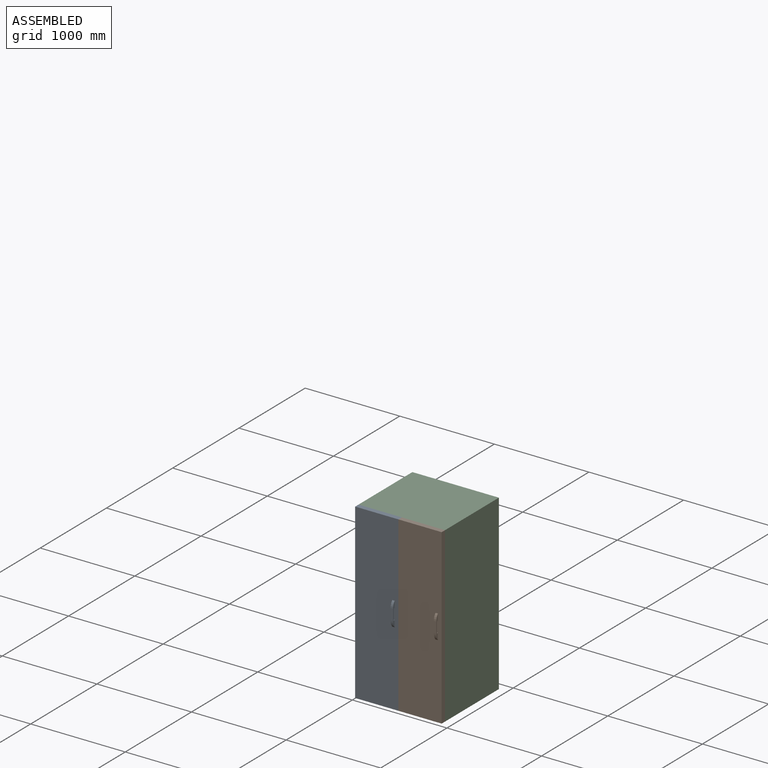
[diagram: assembled view]
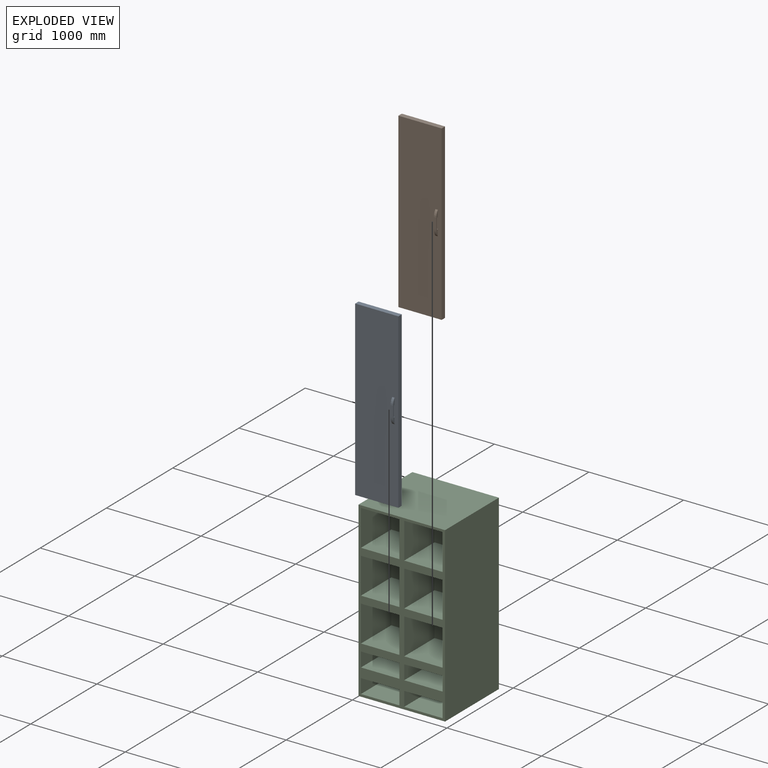
[diagram: exploded view]
GUIDED TOUR — MATED ASSEMBLY (Onshape document 135cf631714aeb2c45aebf53, AutoMate assembly 135cf631714aeb2c45aebf53_234c106c5b8bd25d1501e75b_38424afdbf06f811aea4d824_default)

This assembly has 3 components, labeled P0..P2 below (a component is one placed occurrence of a part; the same part can appear more than once), held together by 2 mates. A mate is a constraint between two components; its type names the relative motion it leaves free:
  REVOLUTE — leaves rotation about the listed axis free (a hinge).
Axis/direction vectors are unit vectors and 'through' points are millimeter coordinates, both in the assembly's world frame.

MATES
  1. REVOLUTE "Revolute 2": P1 <-> P2, axis (0.000, 0.000, -1.000) through (952.82, 38.84, 895.73) mm
  2. REVOLUTE "Revolute 1": P0 <-> P2, axis (0.000, 0.000, -1.000) through (38.42, 38.84, 895.73) mm

ASSEMBLY ORDER
  1. P1 — the base component [order verified]
  2. P0 [order verified]
  3. P2 [order verified]
Order-tag legend:
  [order verified] — this step's position reverses a verified removal order: the component was checked to insert without passing through the ones already placed.

Of the 3 components, 2 carry the full construction recipe — the FeatureScript program that regenerates the part's solid from scratch; the rest are supplied as boundary geometry only.
Each toured component is shown spotlighted twice — in the assembled view, then in the exploded view, where a leader line traces a displaced component back to its assembled socket (saturated green if recipe-attached, orange if geometry-only; every other component desaturated gray) — followed by its recipe or geometry summary and the mates that hold it.
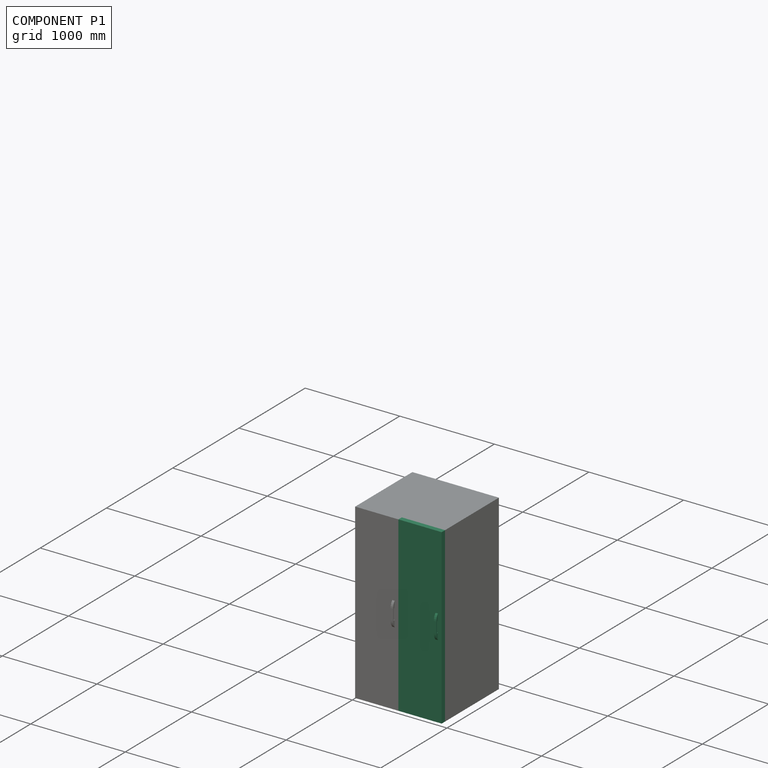
[diagram: component P1 — assembled]
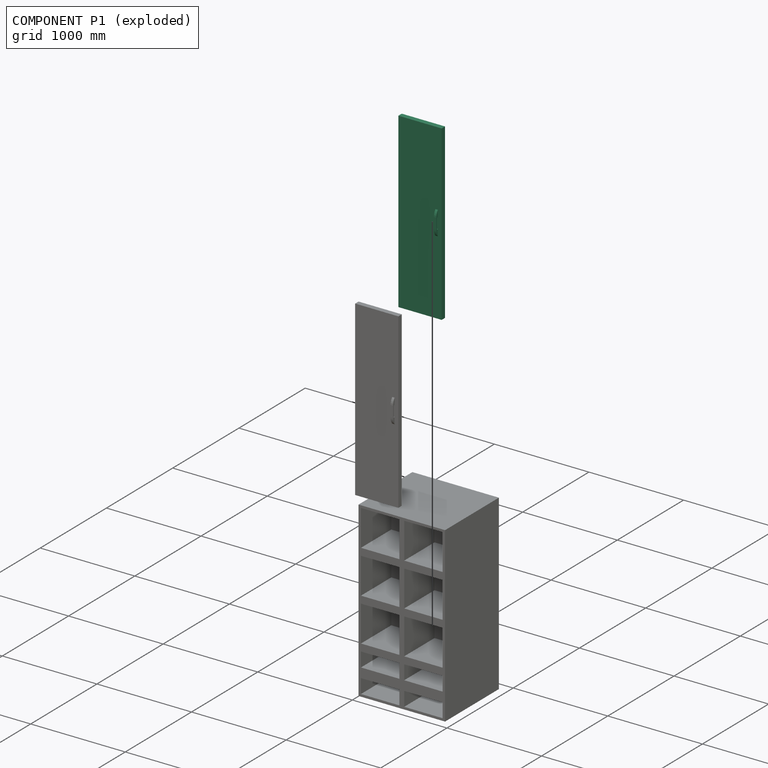
[diagram: component P1 — exploded]
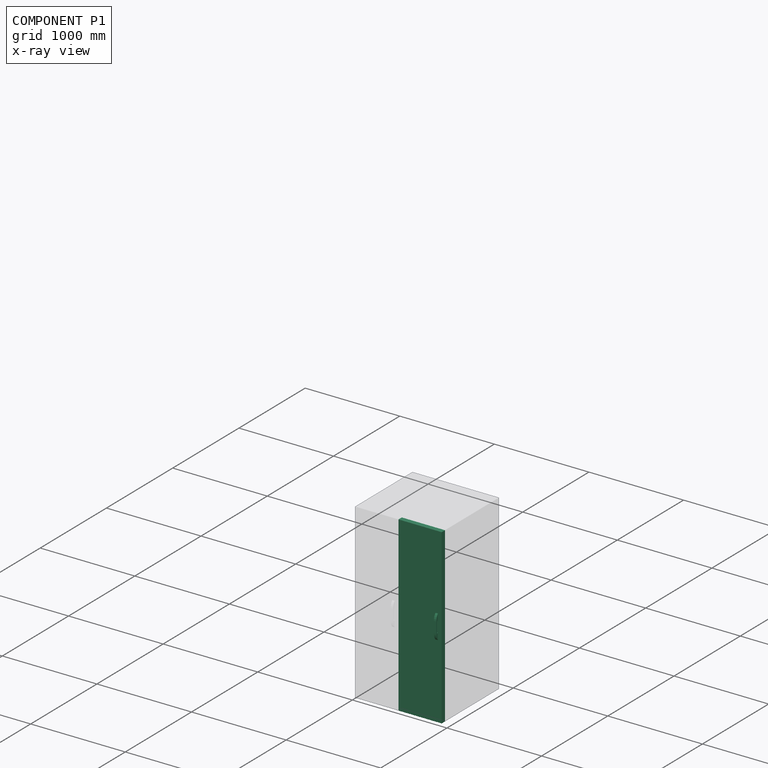
[diagram: component P1 — x-ray view]
COMPONENT P1 — same part as P0 (CADFS 00264354); its construction recipe is shown at P0.
Held by: REVOLUTE mate "Revolute 2" to P2.
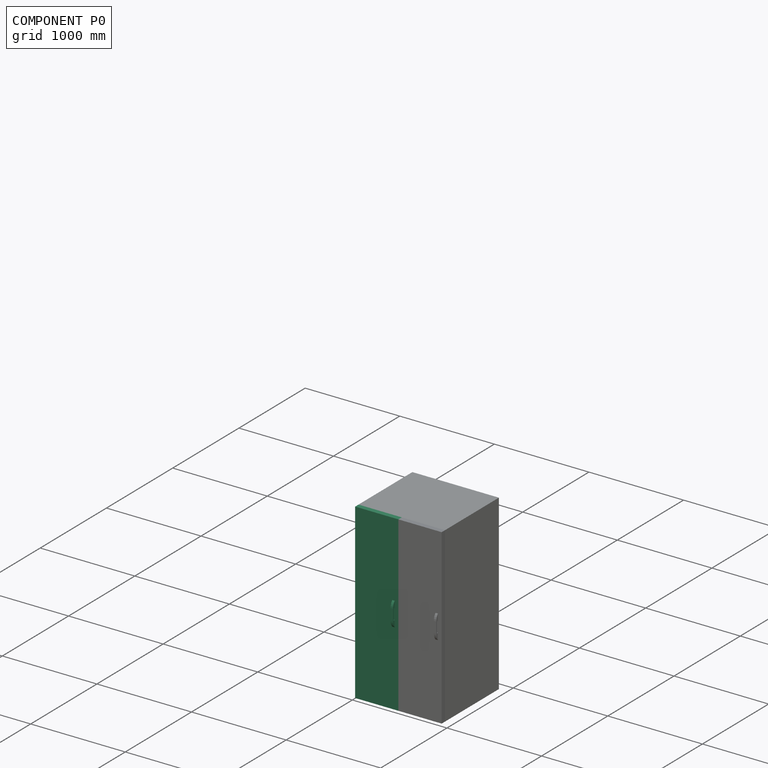
[diagram: component P0 — assembled]
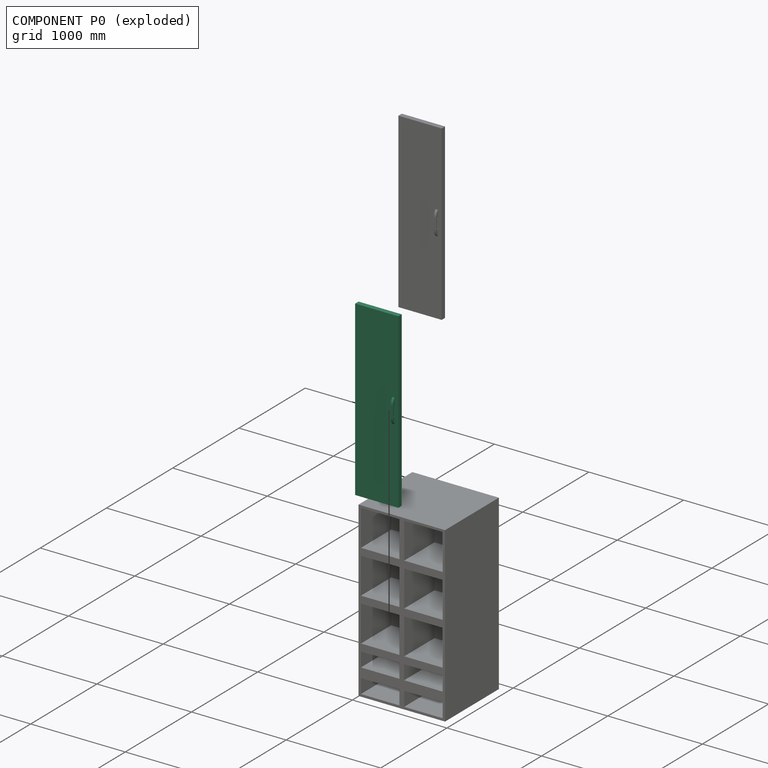
[diagram: component P0 — exploded]
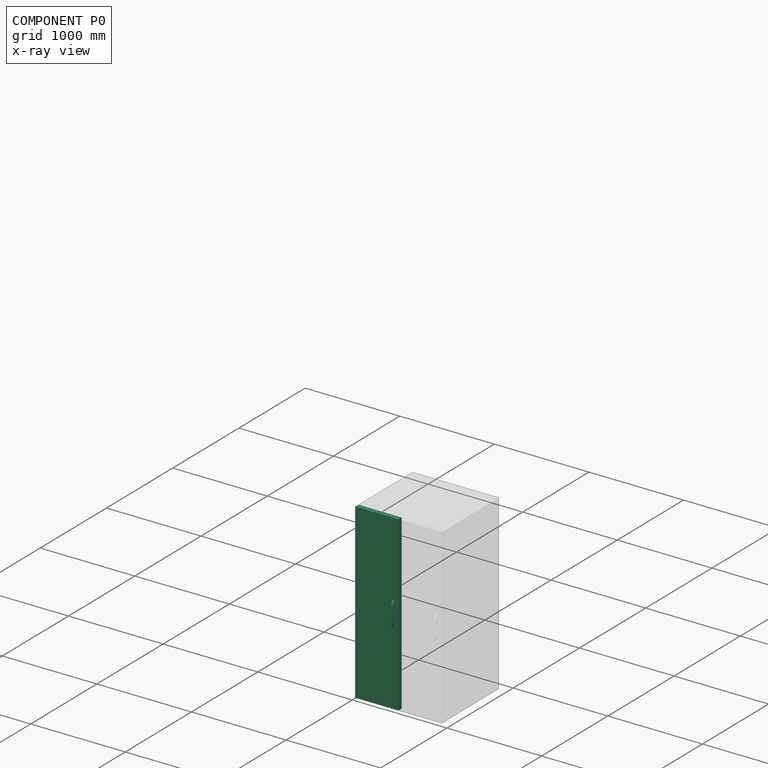
[diagram: component P0 — x-ray view]
COMPONENT P0 — recipe-attached (CADFS 00264354, mesh-verified: the recipe's output STEP matches this component's geometry to below the mesh-comparison resolution (tessellation chordal tolerance ~2.83 mm)).
Held by: REVOLUTE mate "Revolute 1" to P2.
Construction recipe (FeatureScript — the CAD program that rebuilds this solid; sketch coordinates are in the units given by the * unit suffixes, e.g. mm):

FeatureScript 1511;
import(path : "onshape/std/geometry.fs", version : "1511.0");
import(path : "onshape/std/common.fs", version : "1511.0");
const mm = millimeter;
const VERTEX = EntityType.VERTEX;
const EDGE = EntityType.EDGE;
const FACE = EntityType.FACE;
const BODY = EntityType.BODY;
function v(x, y){return vector(x, y);}
function OD(order){return orderDisambiguation(order);}
function OSD(set){return originalSetDisambiguation(set);}
function TD(topology){return topologyDisambiguation(topology);}
function TDD(query){return trueDependencyDisambiguation(query);}
function sQuery(a, b, c) {return sketchEntityQuery(a, b, c);}

annotation { "Feature Type Name" : "Feature", "Feature Type Description" : "" }
export const myFeature = defineFeature(function(context is Context, id is Id, definition is map)
    precondition{}
    {
        {
            var Q0;
            Q0=qCreatedBy(makeId("Front.planeOp"),FACE);
            var sketch = newSketch(context, id + "F0", { "sketchPlane" : qUnion([Q0])});
            skLineSegment(sketch, "E0.bottom", {"start": v(-228.6, 914.4) * mm, "end": v(228.6, 914.4) * mm});
            skLineSegment(sketch, "E0.top", {"start": v(-228.6, -914.4) * mm, "end": v(228.6, -914.4) * mm});
            skLineSegment(sketch, "E0.left", {"start": v(-228.6, 914.4) * mm, "end": v(-228.6, -914.4) * mm});
            skLineSegment(sketch, "E0.right", {"start": v(228.6, 914.4) * mm, "end": v(228.6, -914.4) * mm});
            skPoint(sketch, "E0.middle", {"position": v(0, 0) * mm});
            skSolve(sketch);
        }
        {
            var Q0;
            Q0=makeQuery(id+"F0.imprint","IMPRINT",FACE,{"disambiguationData":[TD([[makeQuery(id+"F0.imprint","IMPRINT",EDGE,{"derivedFrom":sQuery(id+"F0.wireOp",EDGE,"E0.bottom")}),-1.0]])]});
            extrude(context, id + "F1", {"entities" : qUnion([Q0]), "depth" : 50.8 * mm});
        }
        {
            var Q0;
            Q0=makeQuery(id+"F1.opExtrude","CAP_FACE",FACE,{"disambiguationData":[OSD([sQuery(id+"F0.wireOp",EDGE,"E0.bottom"),sQuery(id+"F0.wireOp",EDGE,"E0.top"),sQuery(id+"F0.wireOp",EDGE,"E0.left"),sQuery(id+"F0.wireOp",EDGE,"E0.right")])],"isStart":false});
            var sketch = newSketch(context, id + "F2", { "sketchPlane" : qUnion([Q0])});
            skLineSegment(sketch, "E1.bottom", {"start": v(188.67, 127) * mm, "end": v(163.27, 127) * mm});
            skLineSegment(sketch, "E1.top", {"start": v(188.67, -127) * mm, "end": v(163.27, -127) * mm});
            skLineSegment(sketch, "E1.left", {"start": v(188.67, 127) * mm, "end": v(188.67, -127) * mm});
            skLineSegment(sketch, "E1.right", {"start": v(163.27, 127) * mm, "end": v(163.27, -127) * mm});
            skPoint(sketch, "E1.middle", {"position": v(175.97, 0) * mm});
            skSolve(sketch);
        }
        {
            var Q0;
            Q0=makeQuery(id+"F2.imprint","IMPRINT",FACE,{"disambiguationData":[TD([[makeQuery(id+"F2.imprint","IMPRINT",EDGE,{"derivedFrom":sQuery(id+"F2.wireOp",EDGE,"E1.bottom")}),1.0]])]});
            extrude(context, id + "F3", {"entities" : qUnion([Q0]), "operationType" : NewBodyOperationType.ADD, "depth" : 25.4 * mm});
        }
        {
            var Q0;
            Q0=makeQuery(id+"F3.opExtrude","CAP_EDGE",EDGE,{"disambiguationData":[OSD([sQuery(id+"F2.wireOp",EDGE,"E1.bottom")])],"isStart":false});
            var Q1;
            Q1=makeQuery(id+"F3.opExtrude","CAP_EDGE",EDGE,{"disambiguationData":[OSD([sQuery(id+"F2.wireOp",EDGE,"E1.top")])],"isStart":false});
            fillet(context, id + "F4", {"entities" : qUnion([Q0, Q1]), "radius" : 101.6 * mm, "tangentPropagation" : true, "allowEdgeOverflow" : false});
        }
        {
            var Q0;
            Q0=makeQuery(id+"F3.opExtrude","SWEPT_FACE",FACE,{"disambiguationData":[OSD([sQuery(id+"F2.wireOp",EDGE,"E1.left")])]});
            var sketch = newSketch(context, id + "F5", { "sketchPlane" : qUnion([Q0])});
            skLineSegment(sketch, "E2.bottom", {"start": v(-50.8, 0) * mm, "end": v(-63.5, 0) * mm});
            skLineSegment(sketch, "E2.top", {"start": v(-50.8, 57.15) * mm, "end": v(-63.5, 57.15) * mm});
            skLineSegment(sketch, "E2.left", {"start": v(-50.8, 0) * mm, "end": v(-50.8, 57.15) * mm});
            skLineSegment(sketch, "E2.right", {"start": v(-63.5, 0) * mm, "end": v(-63.5, 57.15) * mm});
            skLineSegment(sketch, "E3.MirrorCS", {"start": v(-63.5, 0) * mm, "end": v(-63.5, -57.15) * mm});
            skLineSegment(sketch, "E4.bottom", {"start": v(-63.5, -57.15) * mm, "end": v(-50.8, -57.15) * mm});
            skLineSegment(sketch, "E4.top", {"start": v(-63.5, 0) * mm, "end": v(-50.8, 0) * mm});
            skLineSegment(sketch, "E4.left", {"start": v(-63.5, -57.15) * mm, "end": v(-63.5, 0) * mm});
            skLineSegment(sketch, "E4.right", {"start": v(-50.8, -57.15) * mm, "end": v(-50.8, 0) * mm});
            skSolve(sketch);
        }
        {
            var Q0;
            Q0=makeQuery(id+"F5.imprint","IMPRINT",FACE,{"disambiguationData":[TD([[makeQuery(id+"F5.imprint","IMPRINT",EDGE,{"derivedFrom":sQuery(id+"F5.wireOp",EDGE,"E4.bottom")}),1.0]])]});
            var Q1;
            Q1=makeQuery(id+"F5.imprint","IMPRINT",FACE,{"disambiguationData":[TD([[makeQuery(id+"F5.imprint","IMPRINT",EDGE,{"derivedFrom":sQuery(id+"F5.wireOp",EDGE,"E2.top")}),1.0]])]});
            extrude(context, id + "F6", {"entities" : qUnion([Q0, Q1]), "operationType" : NewBodyOperationType.REMOVE, "endBound" : BoundingType.THROUGH_ALL, "oppositeDirection" : true, "depth" : 25.4 * mm});
        }
    });
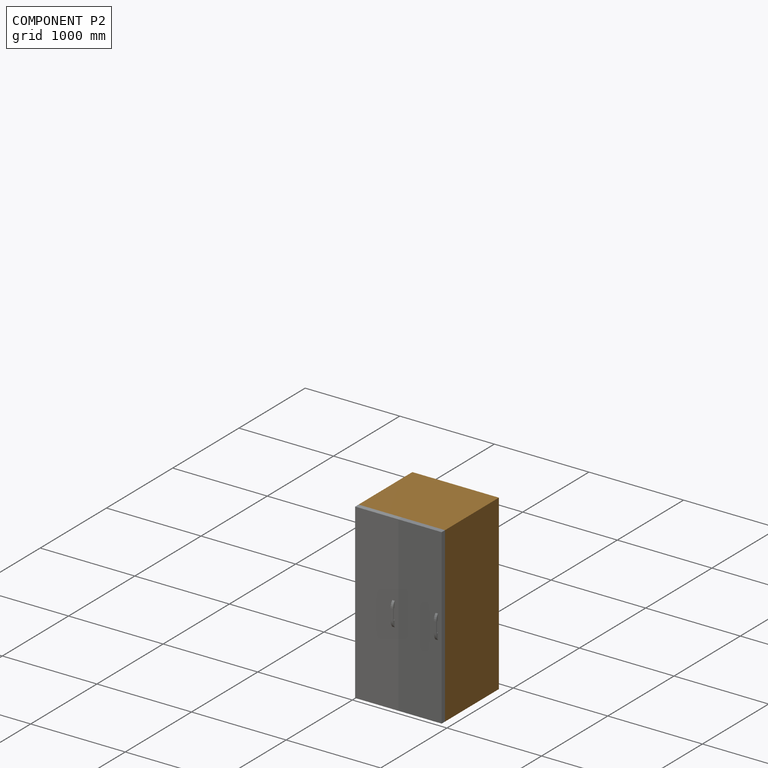
[diagram: component P2 — assembled]
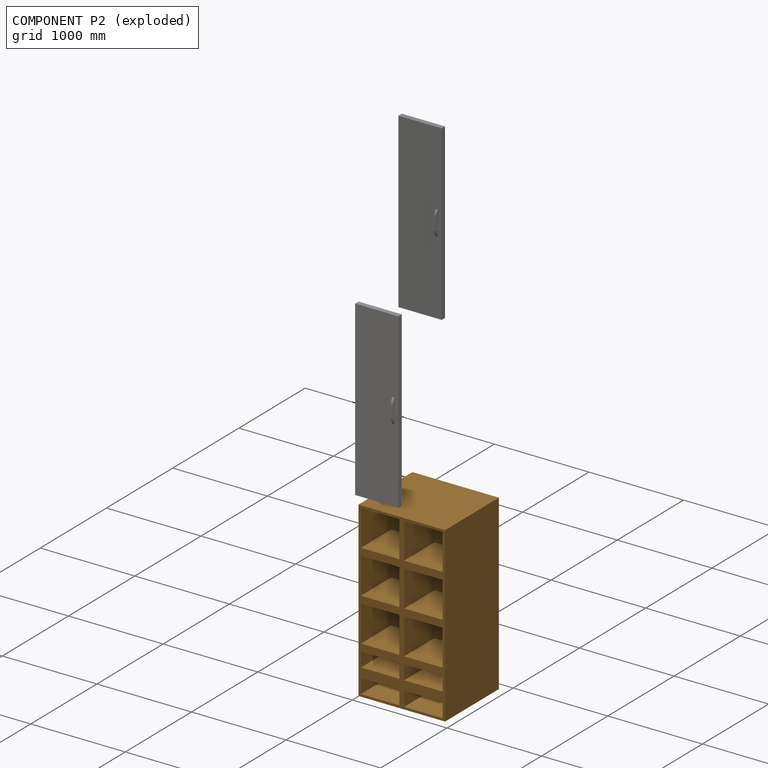
[diagram: component P2 — exploded]
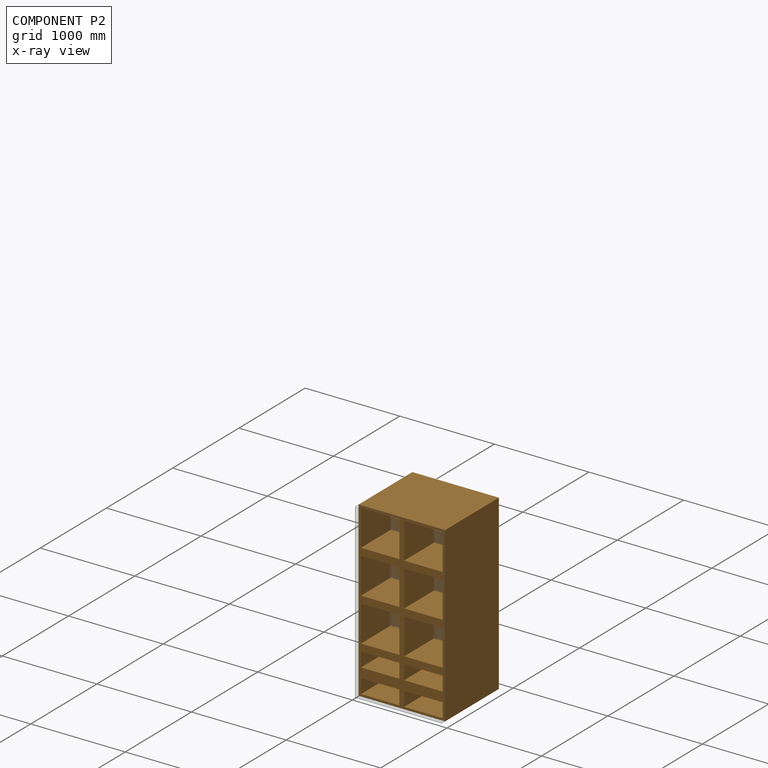
[diagram: component P2 — x-ray view]
COMPONENT P2 — geometry summary (no construction recipe available for this part):
  bounding box: 1828.8 x 914.4 x 812.8 mm
  B-rep topology: 1 solid, 56 faces, 264 edges
  volume: 821188551 mm^3 (60% of its bounding box)
  symmetry: mirror-symmetric across its x mid-plane
Held by: REVOLUTE mate "Revolute 2" to P1; REVOLUTE mate "Revolute 1" to P0.
PROVENANCE & LICENSES
Assembly (occurrences, transforms, mates, per-part STEP geometry): AutoMate dataset, Zenodo record 7776208, CC0.
Construction recipes: CADFS (HuggingFace VladPyatov/CADFS, CC-BY-4.0, layered over the ABC dataset), FeatureScript reconstruction programs keyed by ABC model id.
Join: ABC meta listings map ABC model id -> Onshape documentId; within a shared document, parts are matched by geometric signature (bounding-box dims + volume at 0.1% relative tolerance, exact B-rep face/solid counts).
Verification: 2 of this assembly's 3 components carry a recipe attachment, and every attachment is mesh-verified: the CADFS STEP and the AutoMate member STEP were compared as meshes in their shared local frame (symmetric sampled-point-to-mesh distance); worst across the 2 attachments: below the mesh-comparison resolution (tessellation chordal tolerance ~2.83 mm) on a 1887 mm part.
Renders: orthographic iso camera (az 35 / el 25); the floor grid conveys scale (grid pitch printed in each image; no ruler). In the exploded view each component is displaced by its stored offset vector: the offsets alone carry the explosion direction (mate normal/axis signs are not orientation cues and do not encode it), and separation distances are assigned per mate-chain, not proportionally to assembly-order depth.
